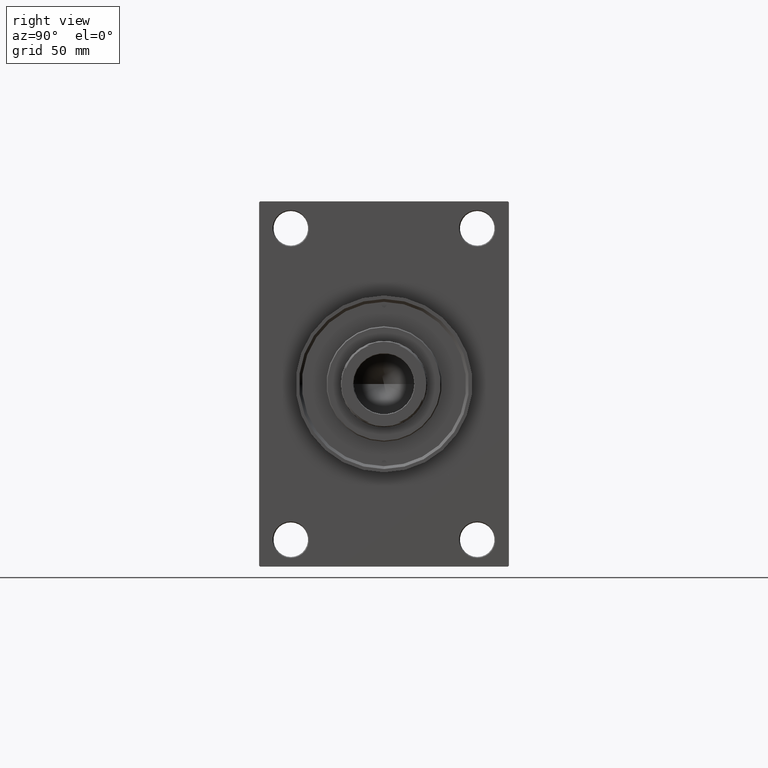
[diagram: clean part render]
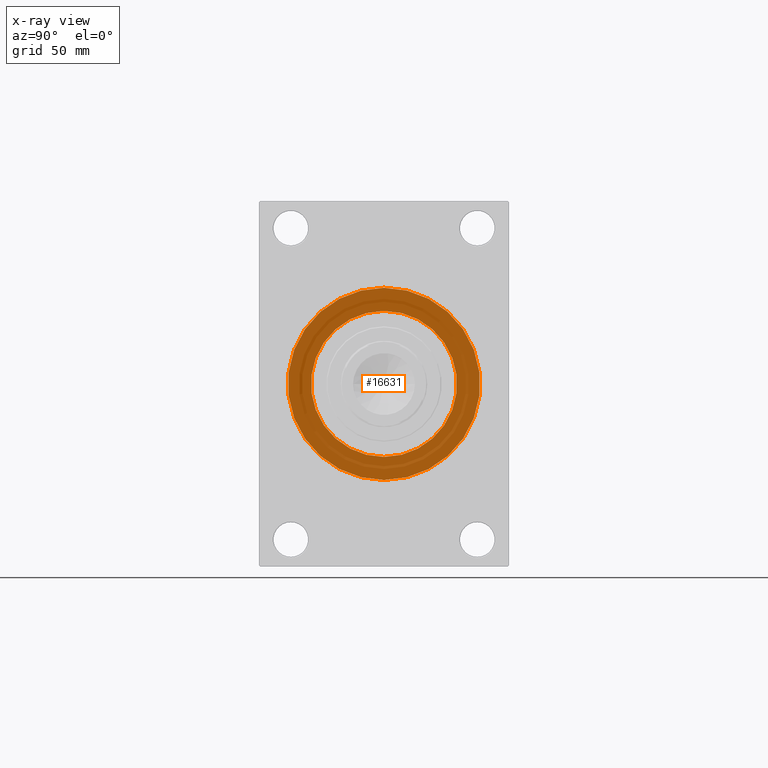
[diagram: x-ray — body ghosted, one internal face saturated and labeled with its STEP entity id]
A machine part, right view, then the same camera in x-ray: the body is ghosted and one INTERNAL B-rep face — a face not visible from any outside direction — is saturated and labeled: STEP entity #16631.
In plain terms, the highlighted planar face has unit normal (-1, 0, 0).
Its self-contained STEP definition (entity closure, byte-faithful):
#338 = ORIENTED_EDGE ( 'NONE', *, *, #10852, .F. ) ;
#1982 = VERTEX_POINT ( 'NONE', #31252 ) ;
#3179 = CIRCLE ( 'NONE', #24808, 50.00000000000000000 ) ;
#3964 = PLANE ( 'NONE',  #9023 ) ;
#5898 = DIRECTION ( 'NONE',  ( -1.000000000000000000, 0.000000000000000000, -0.000000000000000000 ) ) ;
#6886 = EDGE_LOOP ( 'NONE', ( #13847, #32789 ) ) ;
#7285 = DIRECTION ( 'NONE',  ( 1.000000000000000000, 0.000000000000000000, 0.000000000000000000 ) ) ;
#8090 = FACE_OUTER_BOUND ( 'NONE', #43477, .T. ) ;
#9023 = AXIS2_PLACEMENT_3D ( 'NONE', #44625, #26716, #18496 ) ;
#10852 = EDGE_CURVE ( 'NONE', #12252, #1982, #30581, .T. ) ;
#12252 = VERTEX_POINT ( 'NONE', #31615 ) ;
#12511 = CIRCLE ( 'NONE', #19445, 38.00000000000000000 ) ;
#12693 = CARTESIAN_POINT ( 'NONE',  ( 176.0000000000000000, -2.602085213965210642E-15, 0.000000000000000000 ) ) ;
#13173 = DIRECTION ( 'NONE',  ( 1.000000000000000000, 0.000000000000000000, 0.000000000000000000 ) ) ;
#13680 = VERTEX_POINT ( 'NONE', #39346 ) ;
#13847 = ORIENTED_EDGE ( 'NONE', *, *, #27958, .F. ) ;
#14292 = DIRECTION ( 'NONE',  ( -1.000000000000000000, 0.000000000000000000, -0.000000000000000000 ) ) ;
#16631 = ADVANCED_FACE ( 'NONE', ( #41250, #8090 ), #3964, .T. ) ;
#17512 = DIRECTION ( 'NONE',  ( 0.000000000000000000, 0.000000000000000000, 1.000000000000000000 ) ) ;
#18496 = DIRECTION ( 'NONE',  ( -0.000000000000000000, 0.000000000000000000, 1.000000000000000000 ) ) ;
#19445 = AXIS2_PLACEMENT_3D ( 'NONE', #43580, #14292, #40190 ) ;
#23179 = VERTEX_POINT ( 'NONE', #34263 ) ;
#24808 = AXIS2_PLACEMENT_3D ( 'NONE', #12693, #13173, #31084 ) ;
#25421 = CARTESIAN_POINT ( 'NONE',  ( 176.0000000000000000, -2.602085213965210642E-15, 0.000000000000000000 ) ) ;
#25968 = AXIS2_PLACEMENT_3D ( 'NONE', #25421, #7285, #36579 ) ;
#26638 = EDGE_CURVE ( 'NONE', #1982, #12252, #3179, .T. ) ;
#26716 = DIRECTION ( 'NONE',  ( -1.000000000000000000, 0.000000000000000000, -0.000000000000000000 ) ) ;
#27958 = EDGE_CURVE ( 'NONE', #13680, #23179, #12511, .T. ) ;
#28175 = CARTESIAN_POINT ( 'NONE',  ( 176.0000000000000000, 0.000000000000000000, 0.000000000000000000 ) ) ;
#29613 = AXIS2_PLACEMENT_3D ( 'NONE', #28175, #5898, #17512 ) ;
#30581 = CIRCLE ( 'NONE', #25968, 50.00000000000000000 ) ;
#31084 = DIRECTION ( 'NONE',  ( 0.000000000000000000, 0.000000000000000000, -1.000000000000000000 ) ) ;
#31252 = CARTESIAN_POINT ( 'NONE',  ( 176.0000000000000000, 3.521148781771555838E-15, -50.00000000000000000 ) ) ;
#31615 = CARTESIAN_POINT ( 'NONE',  ( 176.0000000000000000, -2.602085213965210642E-15, 50.00000000000000000 ) ) ;
#32789 = ORIENTED_EDGE ( 'NONE', *, *, #45761, .F. ) ;
#34263 = CARTESIAN_POINT ( 'NONE',  ( 176.0000000000000000, 4.653657836759941941E-15, 38.00000000000000000 ) ) ;
#36579 = DIRECTION ( 'NONE',  ( 0.000000000000000000, 0.000000000000000000, -1.000000000000000000 ) ) ;
#39346 = CARTESIAN_POINT ( 'NONE',  ( 176.0000000000000000, 0.000000000000000000, -38.00000000000000000 ) ) ;
#40190 = DIRECTION ( 'NONE',  ( 0.000000000000000000, 0.000000000000000000, 1.000000000000000000 ) ) ;
#41250 = FACE_BOUND ( 'NONE', #6886, .T. ) ;
#43477 = EDGE_LOOP ( 'NONE', ( #338, #45867 ) ) ;
#43580 = CARTESIAN_POINT ( 'NONE',  ( 176.0000000000000000, 0.000000000000000000, 0.000000000000000000 ) ) ;
#44625 = CARTESIAN_POINT ( 'NONE',  ( 176.0000000000000000, 0.000000000000000000, 0.000000000000000000 ) ) ;
#45761 = EDGE_CURVE ( 'NONE', #23179, #13680, #46606, .T. ) ;
#45867 = ORIENTED_EDGE ( 'NONE', *, *, #26638, .F. ) ;
#46606 = CIRCLE ( 'NONE', #29613, 38.00000000000000000 ) ;